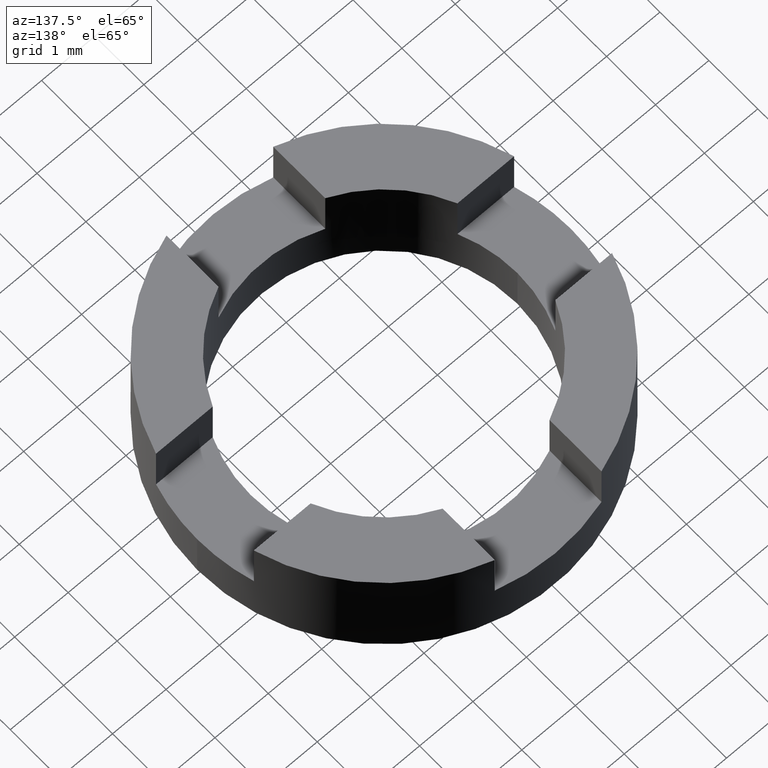
[diagram: clean part render]
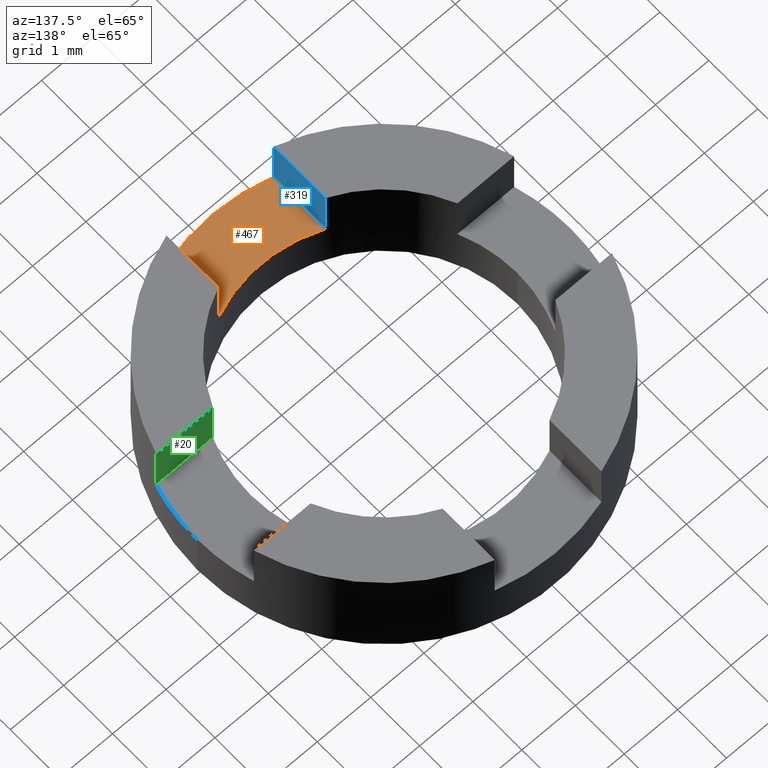
[diagram: same view with three faces highlighted in distinct colors, each labeled with its STEP entity id]
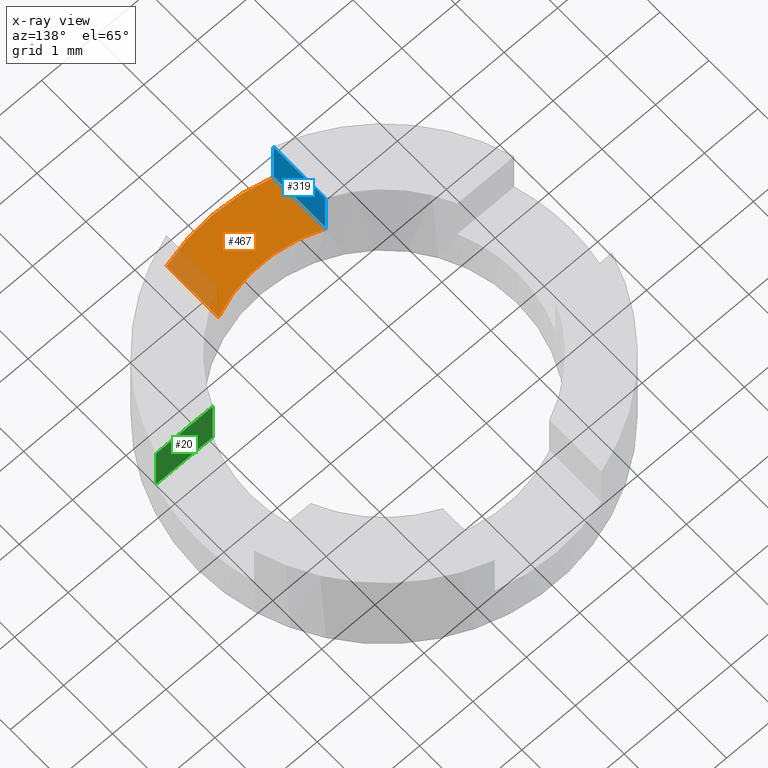
[diagram: x-ray of the same camera — body ghosted, the three highlighted faces saturated]
A machine part, auxiliary view with three faces highlighted in distinct colors.
The next image is the same camera in x-ray (body ghosted, the three faces saturated) — at least one of them is partly hidden behind the body in this view.
Their STEP definitions:

[orange] entity #467 — the highlighted planar face has unit normal (0, 0, -1).
#3 = CARTESIAN_POINT ( 'NONE',  ( -0.9999999999996530553, -1.805037895306154994, 1.000000000000000000 ) ) ;
#10 = CIRCLE ( 'NONE', #97, 2.500000000000000000 ) ;
#17 = EDGE_CURVE ( 'NONE', #19, #219, #10, .T. ) ;
#19 = VERTEX_POINT ( 'NONE', #777 ) ;
#97 = AXIS2_PLACEMENT_3D ( 'NONE', #240, #722, #410 ) ;
#103 = EDGE_CURVE ( 'NONE', #691, #743, #112, .T. ) ;
#112 = CIRCLE ( 'NONE', #554, 3.500000000000000000 ) ;
#114 = VECTOR ( 'NONE', #779, 1000.000000000000000 ) ;
#135 = DIRECTION ( 'NONE',  ( 1.279323200775837714E-16, -1.000000000000000000, 0.000000000000000000 ) ) ;
#144 = ORIENTED_EDGE ( 'NONE', *, *, #507, .T. ) ;
#200 = EDGE_CURVE ( 'NONE', #219, #743, #665, .T. ) ;
#209 = EDGE_LOOP ( 'NONE', ( #144, #556, #516, #444 ) ) ;
#219 = VERTEX_POINT ( 'NONE', #736 ) ;
#228 = FACE_OUTER_BOUND ( 'NONE', #209, .T. ) ;
#237 = CARTESIAN_POINT ( 'NONE',  ( -0.9999999999996528333, -3.354101966249788180, 1.000000000000000000 ) ) ;
#240 = CARTESIAN_POINT ( 'NONE',  ( 0.000000000000000000, 0.000000000000000000, 1.000000000000000000 ) ) ;
#243 = DIRECTION ( 'NONE',  ( -1.000000000000000000, 0.000000000000000000, 0.000000000000000000 ) ) ;
#290 = CARTESIAN_POINT ( 'NONE',  ( 0.000000000000000000, 0.000000000000000000, 1.000000000000000000 ) ) ;
#295 = AXIS2_PLACEMENT_3D ( 'NONE', #290, #522, #462 ) ;
#296 = CARTESIAN_POINT ( 'NONE',  ( 0.000000000000000000, 0.000000000000000000, 1.000000000000000000 ) ) ;
#404 = LINE ( 'NONE', #409, #114 ) ;
#409 = CARTESIAN_POINT ( 'NONE',  ( 1.000000000000347056, -1.805037895306154105, 1.000000000000000000 ) ) ;
#410 = DIRECTION ( 'NONE',  ( -1.000000000000000000, 0.000000000000000000, 0.000000000000000000 ) ) ;
#432 = VECTOR ( 'NONE', #135, 1000.000000000000000 ) ;
#444 = ORIENTED_EDGE ( 'NONE', *, *, #103, .F. ) ;
#462 = DIRECTION ( 'NONE',  ( -1.000000000000000000, 0.000000000000000000, -0.000000000000000000 ) ) ;
#467 = ADVANCED_FACE ( 'NONE', ( #228 ), #590, .F. ) ;
#507 = EDGE_CURVE ( 'NONE', #691, #19, #404, .T. ) ;
#516 = ORIENTED_EDGE ( 'NONE', *, *, #200, .T. ) ;
#522 = DIRECTION ( 'NONE',  ( 0.000000000000000000, 0.000000000000000000, -1.000000000000000000 ) ) ;
#533 = DIRECTION ( 'NONE',  ( 0.000000000000000000, 0.000000000000000000, -1.000000000000000000 ) ) ;
#554 = AXIS2_PLACEMENT_3D ( 'NONE', #296, #533, #243 ) ;
#556 = ORIENTED_EDGE ( 'NONE', *, *, #17, .T. ) ;
#590 = PLANE ( 'NONE',  #295 ) ;
#598 = CARTESIAN_POINT ( 'NONE',  ( 1.000000000000347278, -3.354101966249581235, 1.000000000000000000 ) ) ;
#665 = LINE ( 'NONE', #3, #432 ) ;
#691 = VERTEX_POINT ( 'NONE', #598 ) ;
#722 = DIRECTION ( 'NONE',  ( 0.000000000000000000, 0.000000000000000000, -1.000000000000000000 ) ) ;
#736 = CARTESIAN_POINT ( 'NONE',  ( -0.9999999999996530553, -2.291287847478071349, 1.000000000000000000 ) ) ;
#743 = VERTEX_POINT ( 'NONE', #237 ) ;
#777 = CARTESIAN_POINT ( 'NONE',  ( 1.000000000000347056, -2.291287847477768924, 1.000000000000000000 ) ) ;
#779 = DIRECTION ( 'NONE',  ( -1.279323200775836975E-16, 1.000000000000000000, -0.000000000000000000 ) ) ;

[blue] entity #319 — the highlighted planar face has unit normal (-1, -0, 0).
#3 = CARTESIAN_POINT ( 'NONE',  ( -0.9999999999996530553, -1.805037895306154994, 1.000000000000000000 ) ) ;
#78 = EDGE_CURVE ( 'NONE', #743, #448, #588, .T. ) ;
#104 = CARTESIAN_POINT ( 'NONE',  ( -0.9999999999996530553, -1.805037895306154994, 2.000000000000000000 ) ) ;
#110 = CARTESIAN_POINT ( 'NONE',  ( -0.9999999999996528333, -3.354101966249788180, 2.000000000000000000 ) ) ;
#135 = DIRECTION ( 'NONE',  ( 1.279323200775837714E-16, -1.000000000000000000, 0.000000000000000000 ) ) ;
#167 = VECTOR ( 'NONE', #774, 1000.000000000000000 ) ;
#172 = LINE ( 'NONE', #519, #542 ) ;
#200 = EDGE_CURVE ( 'NONE', #219, #743, #665, .T. ) ;
#208 = PLANE ( 'NONE',  #756 ) ;
#219 = VERTEX_POINT ( 'NONE', #736 ) ;
#223 = CARTESIAN_POINT ( 'NONE',  ( -0.9999999999996530553, -2.291287847478071349, 2.000000000000000000 ) ) ;
#237 = CARTESIAN_POINT ( 'NONE',  ( -0.9999999999996528333, -3.354101966249788180, 1.000000000000000000 ) ) ;
#247 = LINE ( 'NONE', #104, #167 ) ;
#267 = VERTEX_POINT ( 'NONE', #223 ) ;
#276 = ORIENTED_EDGE ( 'NONE', *, *, #200, .F. ) ;
#282 = DIRECTION ( 'NONE',  ( 1.279323200775837714E-16, -1.000000000000000000, 0.000000000000000000 ) ) ;
#285 = ORIENTED_EDGE ( 'NONE', *, *, #442, .T. ) ;
#319 = ADVANCED_FACE ( 'NONE', ( #759 ), #208, .F. ) ;
#331 = VECTOR ( 'NONE', #591, 1000.000000000000000 ) ;
#432 = VECTOR ( 'NONE', #135, 1000.000000000000000 ) ;
#442 = EDGE_CURVE ( 'NONE', #219, #267, #172, .T. ) ;
#443 = DIRECTION ( 'NONE',  ( -1.000000000000000000, -1.279323200775837714E-16, 0.000000000000000000 ) ) ;
#448 = VERTEX_POINT ( 'NONE', #110 ) ;
#511 = CARTESIAN_POINT ( 'NONE',  ( -0.9999999999996530553, -1.805037895306154994, 1.000000000000000000 ) ) ;
#519 = CARTESIAN_POINT ( 'NONE',  ( -0.9999999999996530553, -2.291287847478071349, 2.000000000000000000 ) ) ;
#542 = VECTOR ( 'NONE', #655, 1000.000000000000000 ) ;
#588 = LINE ( 'NONE', #601, #331 ) ;
#591 = DIRECTION ( 'NONE',  ( 0.000000000000000000, 0.000000000000000000, 1.000000000000000000 ) ) ;
#601 = CARTESIAN_POINT ( 'NONE',  ( -0.9999999999996528333, -3.354101966249788180, 2.000000000000000000 ) ) ;
#623 = ORIENTED_EDGE ( 'NONE', *, *, #674, .T. ) ;
#638 = ORIENTED_EDGE ( 'NONE', *, *, #78, .F. ) ;
#655 = DIRECTION ( 'NONE',  ( 0.000000000000000000, 0.000000000000000000, 1.000000000000000000 ) ) ;
#657 = EDGE_LOOP ( 'NONE', ( #276, #285, #623, #638 ) ) ;
#665 = LINE ( 'NONE', #3, #432 ) ;
#674 = EDGE_CURVE ( 'NONE', #267, #448, #247, .T. ) ;
#736 = CARTESIAN_POINT ( 'NONE',  ( -0.9999999999996530553, -2.291287847478071349, 1.000000000000000000 ) ) ;
#743 = VERTEX_POINT ( 'NONE', #237 ) ;
#756 = AXIS2_PLACEMENT_3D ( 'NONE', #511, #443, #282 ) ;
#759 = FACE_OUTER_BOUND ( 'NONE', #657, .T. ) ;
#774 = DIRECTION ( 'NONE',  ( 1.279323200775837714E-16, -1.000000000000000000, 0.000000000000000000 ) ) ;

[green] entity #20 — the highlighted planar face has unit normal (0, -1, 0).
#20 = ADVANCED_FACE ( 'NONE', ( #179 ), #246, .F. ) ;
#25 = ORIENTED_EDGE ( 'NONE', *, *, #713, .T. ) ;
#86 = CARTESIAN_POINT ( 'NONE',  ( 2.291287847477939899, -0.9999999999999549249, 2.000000000000000000 ) ) ;
#100 = VERTEX_POINT ( 'NONE', #523 ) ;
#123 = DIRECTION ( 'NONE',  ( 1.279323200775837468E-16, -1.000000000000000000, 0.000000000000000000 ) ) ;
#140 = VECTOR ( 'NONE', #454, 1000.000000000000000 ) ;
#163 = LINE ( 'NONE', #303, #390 ) ;
#165 = CARTESIAN_POINT ( 'NONE',  ( 1.805037895306200069, -0.9999999999999549249, 1.000000000000000000 ) ) ;
#168 = LINE ( 'NONE', #86, #140 ) ;
#179 = FACE_OUTER_BOUND ( 'NONE', #301, .T. ) ;
#185 = VERTEX_POINT ( 'NONE', #257 ) ;
#245 = CARTESIAN_POINT ( 'NONE',  ( 1.805037895306200069, -0.9999999999999549249, 1.000000000000000000 ) ) ;
#246 = PLANE ( 'NONE',  #541 ) ;
#257 = CARTESIAN_POINT ( 'NONE',  ( 2.291287847477939899, -0.9999999999999549249, 1.000000000000000000 ) ) ;
#292 = LINE ( 'NONE', #605, #434 ) ;
#301 = EDGE_LOOP ( 'NONE', ( #509, #686, #25, #682 ) ) ;
#303 = CARTESIAN_POINT ( 'NONE',  ( 3.354101966249698030, -0.9999999999999547029, 2.000000000000000000 ) ) ;
#351 = CARTESIAN_POINT ( 'NONE',  ( 2.291287847477939899, -0.9999999999999549249, 2.000000000000000000 ) ) ;
#356 = LINE ( 'NONE', #245, #616 ) ;
#367 = DIRECTION ( 'NONE',  ( 1.000000000000000000, 1.279323200775837468E-16, 0.000000000000000000 ) ) ;
#390 = VECTOR ( 'NONE', #414, 1000.000000000000000 ) ;
#414 = DIRECTION ( 'NONE',  ( 0.000000000000000000, 0.000000000000000000, 1.000000000000000000 ) ) ;
#424 = DIRECTION ( 'NONE',  ( 1.000000000000000000, 1.279323200775837468E-16, 0.000000000000000000 ) ) ;
#434 = VECTOR ( 'NONE', #484, 1000.000000000000000 ) ;
#438 = VERTEX_POINT ( 'NONE', #642 ) ;
#454 = DIRECTION ( 'NONE',  ( 0.000000000000000000, 0.000000000000000000, 1.000000000000000000 ) ) ;
#484 = DIRECTION ( 'NONE',  ( 1.000000000000000000, 1.279323200775837468E-16, 0.000000000000000000 ) ) ;
#498 = EDGE_CURVE ( 'NONE', #438, #100, #163, .T. ) ;
#509 = ORIENTED_EDGE ( 'NONE', *, *, #521, .F. ) ;
#521 = EDGE_CURVE ( 'NONE', #185, #438, #356, .T. ) ;
#523 = CARTESIAN_POINT ( 'NONE',  ( 3.354101966249698030, -0.9999999999999547029, 2.000000000000000000 ) ) ;
#541 = AXIS2_PLACEMENT_3D ( 'NONE', #165, #123, #367 ) ;
#605 = CARTESIAN_POINT ( 'NONE',  ( 1.805037895306200069, -0.9999999999999549249, 2.000000000000000000 ) ) ;
#616 = VECTOR ( 'NONE', #424, 1000.000000000000000 ) ;
#642 = CARTESIAN_POINT ( 'NONE',  ( 3.354101966249698030, -0.9999999999999547029, 1.000000000000000000 ) ) ;
#682 = ORIENTED_EDGE ( 'NONE', *, *, #498, .F. ) ;
#686 = ORIENTED_EDGE ( 'NONE', *, *, #783, .T. ) ;
#688 = VERTEX_POINT ( 'NONE', #351 ) ;
#713 = EDGE_CURVE ( 'NONE', #688, #100, #292, .T. ) ;
#783 = EDGE_CURVE ( 'NONE', #185, #688, #168, .T. ) ;